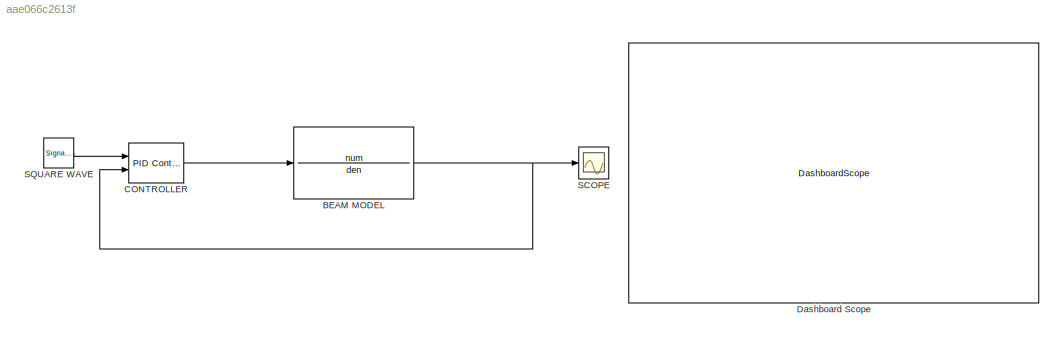
MODEL slx_aae066c2613f
KIND model
CONFIG AbsTol = auto
CONFIG EnableMultiTasking = off
CONFIG FixedStep = auto
CONFIG MaxStep = auto
CONFIG MinStep = auto
CONFIG RelTol = 1e-3
CONFIG SampleTimeConstraint = Unconstrained
CONFIG Solver = VariableStepAuto
CONFIG SolverName = VariableStepAuto
CONFIG StartTime = 0.0
CONFIG StopTime = 10.0
BLOCK [Reference]  CONTROLLER  REF=simulink/Continuous/PID Controller (2DOF)
  Ports = [2, 1]
  SourceBlock = simulink/Continuous/PID Controller (2DOF)
  SourceProductBaseCode = SL
  SourceType = PID 2dof
BLOCK [TransferFcn] BEAM MODEL
  Denominator = den
  Numerator = num
BLOCK [DashboardScope] Dashboard Scope
BLOCK [Scope] SCOPE
  Floating = off
  NumInputPorts = 1
  Ports = [1]
  ScopeSpecificationString = Simulink.scopes.TimeScopeBlockCfg('CurrentConfiguration', extmgr.ConfigurationSet(extmgr.Configuration('Core','General UI',true),extmgr.Configuration('Core','Source UI',true),extmgr.Configuration('Sources','WiredSimulink',true),extmgr.Configuration('Visuals','Time Domain',true,'SerializedDisplays',{struct('MinYLimReal','-1.71482','MaxYLimReal','1.95806','YLabelReal','','MinYLimMag','0.00000','MaxY...<+1363ch>
BLOCK [SignalGenerator] SQUARE WAVE
  Frequency = 0.5
  Ports = [0, 1]
  WaveForm = square
LINE  CONTROLLER:1 -> BEAM MODEL:1
NET BEAM MODEL:1 ->  CONTROLLER:2, SCOPE:1
LINE SQUARE WAVE:1 ->  CONTROLLER:1
note: NET lines group one-source signal fan-out (src -> all destinations, sorted); 1:1 wires keep LINE
